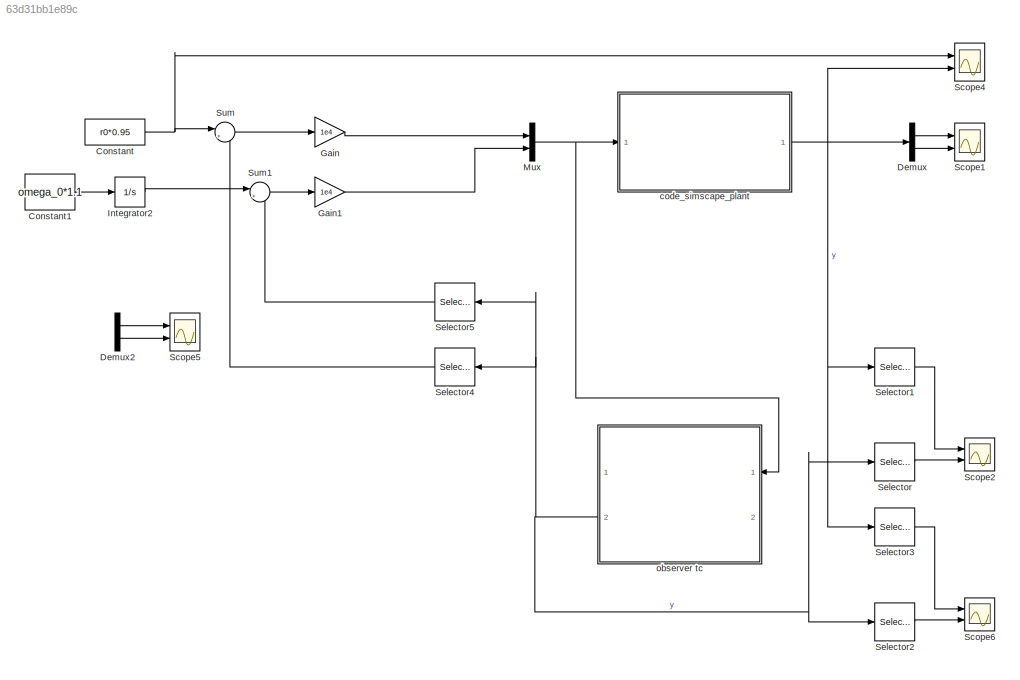
MODEL slx_63d31bb1e89c
KIND model
CONFIG AbsTol = auto
CONFIG EnableMultiTasking = off
CONFIG FixedStep = auto
CONFIG MaxStep = ts
CONFIG MinStep = auto
CONFIG RelTol = 1e-3
CONFIG SampleTimeConstraint = Unconstrained
CONFIG Solver = daessc
CONFIG SolverName = daessc
CONFIG StartTime = 0.0
CONFIG StopTime = simlength
BLOCK [Constant] Constant
  Value = r0*0.95
BLOCK [Constant] Constant1
  Value = omega_0*1.1
BLOCK [Demux] Demux
  Outputs = 2
  Ports = [1, 2]
BLOCK [Demux] Demux2
  Outputs = 2
  Ports = [1, 2]
BLOCK [Gain] Gain
  Gain = 1e4
BLOCK [Gain] Gain1
  Gain = 1e4
BLOCK [Integrator] Integrator2
  Ports = [1, 1]
BLOCK [Mux] Mux
  DisplayOption = bar
  Inputs = 2
  Ports = [2, 1]
BLOCK [Scope] Scope1
  Floating = off
  NumInputPorts = 2
  Ports = [2]
  ScopeSpecificationString = Simulink.scopes.TimeScopeBlockCfg('CurrentConfiguration', extmgr.ConfigurationSet(extmgr.Configuration('Core','General UI',true),extmgr.Configuration('Core','Source UI',true),extmgr.Configuration('Sources','WiredSimulink',true,'DataLoggingVariableName','ScopeData1'),extmgr.Configuration('Visuals','Time Domain',true,'SerializedDisplays',{struct('MinYLimReal','-350136390390.02484','MaxYLimReal','315...<+2063ch>
BLOCK [Scope] Scope2
  Floating = off
  NumInputPorts = 2
  Ports = [2]
  ScopeSpecificationString = Simulink.scopes.TimeScopeBlockCfg('CurrentConfiguration', extmgr.ConfigurationSet(extmgr.Configuration('Core','General UI',true),extmgr.Configuration('Core','Source UI',true),extmgr.Configuration('Sources','WiredSimulink',true,'DataLoggingVariableName','ScopeData2'),extmgr.Configuration('Visuals','Time Domain',true,'SerializedDisplays',{struct('MinYLimReal','-350137728483.82721','MaxYLimReal','315...<+1562ch>
BLOCK [Scope] Scope4
  Floating = off
  NumInputPorts = 2
  Ports = [2]
  ScopeSpecificationString = Simulink.scopes.TimeScopeBlockCfg('CurrentConfiguration', extmgr.ConfigurationSet(extmgr.Configuration('Core','General UI',true),extmgr.Configuration('Core','Source UI',true),extmgr.Configuration('Sources','WiredSimulink',true,'DataLoggingVariableName','ScopeData1'),extmgr.Configuration('Visuals','Time Domain',true,'SerializedDisplays',{struct('MinYLimReal','-5275000.00000','MaxYLimReal','47475000...<+2141ch>
BLOCK [Scope] Scope5
  Floating = off
  NumInputPorts = 2
  Ports = [2]
  ScopeSpecificationString = Simulink.scopes.TimeScopeBlockCfg('CurrentConfiguration', extmgr.ConfigurationSet(extmgr.Configuration('Core','General UI',true),extmgr.Configuration('Core','Source UI',true),extmgr.Configuration('Sources','WiredSimulink',true,'DataLoggingVariableName','ScopeData3'),extmgr.Configuration('Visuals','Time Domain',true,'SerializedDisplays',{struct('MinYLimReal','32200000.00000','MaxYLimReal','52200000...<+2144ch>
BLOCK [Scope] Scope6
  Floating = off
  NumInputPorts = 2
  Ports = [2]
  ScopeSpecificationString = Simulink.scopes.TimeScopeBlockCfg('CurrentConfiguration', extmgr.ConfigurationSet(extmgr.Configuration('Core','General UI',true),extmgr.Configuration('Core','Source UI',true),extmgr.Configuration('Sources','WiredSimulink',true,'DataLoggingVariableName','ScopeData4'),extmgr.Configuration('Visuals','Time Domain',true,'SerializedDisplays',{struct('MinYLimReal','-240.0808','MaxYLimReal','2145.74493','...<+1516ch>
BLOCK [Selector] Selector
  IndexOptions = Index vector (dialog)
  Indices = 1
  InputPortWidth = 2
  OutputSizes = 1
  Ports = [1, 1]
BLOCK [Selector] Selector1
  IndexOptions = Index vector (dialog)
  Indices = 1
  InputPortWidth = 2
  OutputSizes = 1
  Ports = [1, 1]
BLOCK [Selector] Selector2
  IndexOptions = Index vector (dialog)
  Indices = 2
  InputPortWidth = 2
  OutputSizes = 1
  Ports = [1, 1]
BLOCK [Selector] Selector3
  IndexOptions = Index vector (dialog)
  Indices = 2
  InputPortWidth = 2
  OutputSizes = 1
  Ports = [1, 1]
BLOCK [Selector] Selector4
  IndexOptions = Index vector (dialog)
  Indices = 1
  InputPortWidth = 2
  OutputSizes = 1
  Ports = [1, 1]
BLOCK [Selector] Selector5
  IndexOptions = Index vector (dialog)
  Indices = 2
  InputPortWidth = 2
  OutputSizes = 1
  Ports = [1, 1]
BLOCK [Sum] Sum
  Inputs = |+-
  Ports = [2, 1]
BLOCK [Sum] Sum1
  Inputs = |+-
  Ports = [2, 1]
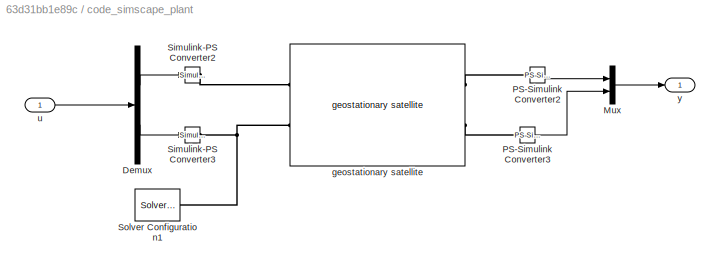
BLOCK [SubSystem] code_simscape_plant 
  Ports = [1, 1]
  RequestExecContextInheritance = off
BLOCK [Demux] code_simscape_plant /Demux
  Outputs = 2
  Ports = [1, 2]
BLOCK [Mux] code_simscape_plant /Mux
  DisplayOption = bar
  Inputs = 2
  Ports = [2, 1]
BLOCK [Reference] code_simscape_plant /PS-Simulink Converter2  REF=nesl_utility/PS-Simulink
Converter
  Ports = [0, 1, 0, 0, 0, 1]
  SourceBlock = nesl_utility/PS-Simulink\nConverter
  SourceProductBaseCode = SS
  SourceType = PS-Simulink\nConverter
BLOCK [Reference] code_simscape_plant /PS-Simulink Converter3  REF=nesl_utility/PS-Simulink
Converter
  NameLocation = top
  Ports = [0, 1, 0, 0, 0, 1]
  SourceBlock = nesl_utility/PS-Simulink\nConverter
  SourceProductBaseCode = SS
  SourceType = PS-Simulink\nConverter
BLOCK [Reference] code_simscape_plant /Simulink-PS Converter2  REF=nesl_utility/Simulink-PS
Converter
  Ports = [1, 0, 0, 0, 0, 0, 1]
  SourceBlock = nesl_utility/Simulink-PS\nConverter
  SourceProductBaseCode = SS
  SourceType = Simulink-PS\nConverter
BLOCK [Reference] code_simscape_plant /Simulink-PS Converter3  REF=nesl_utility/Simulink-PS
Converter
  Ports = [1, 0, 0, 0, 0, 0, 1]
  SourceBlock = nesl_utility/Simulink-PS\nConverter
  SourceProductBaseCode = SS
  SourceType = Simulink-PS\nConverter
BLOCK [Reference] code_simscape_plant /Solver Configuration1  REF=nesl_utility/Solver
Configuration
  Ports = [0, 0, 0, 0, 0, 0, 1]
  SourceBlock = nesl_utility/Solver\nConfiguration
  SourceProductBaseCode = SS
  SourceType = Solver\nConfiguration
BLOCK [Reference] code_simscape_plant /geostationary satellite  REF=geostationary_satellite_lib/geostationary
satellite
  Ports = [0, 0, 0, 0, 0, 2, 2]
  SourceBlock = geostationary_satellite_lib/geostationary\nsatellite
  SourceType = geostationary\nsatellite
BLOCK [Inport] code_simscape_plant /u
BLOCK [Outport] code_simscape_plant /y
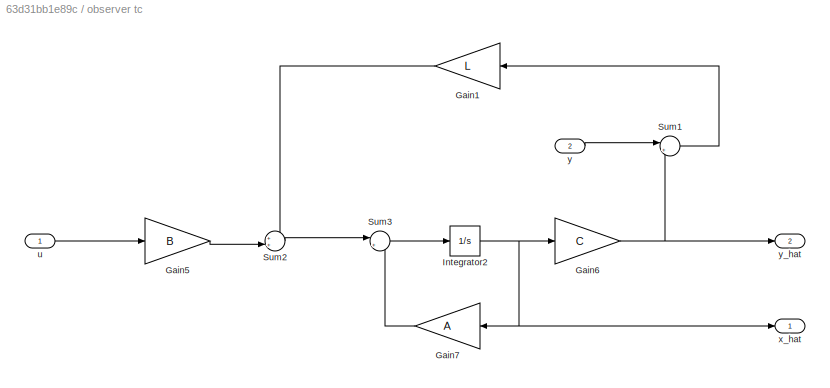
BLOCK [SubSystem] observer tc
  NameLocation = top
  Ports = [2, 2]
  RequestExecContextInheritance = off
BLOCK [Gain] observer tc/Gain1
  Gain = L
  Multiplication = Matrix(K*u)
  NameLocation = top
BLOCK [Gain] observer tc/Gain5
  Gain = B
  Multiplication = Matrix(K*u)
BLOCK [Gain] observer tc/Gain6
  Gain = C
  Multiplication = Matrix(K*u)
BLOCK [Gain] observer tc/Gain7
  Gain = A
  Multiplication = Matrix(K*u)
BLOCK [Integrator] observer tc/Integrator2
  InitialCondition = [r0 0 0 omega_0]'
  Ports = [1, 1]
BLOCK [Sum] observer tc/Sum1
  Inputs = |+-
  Ports = [2, 1]
BLOCK [Sum] observer tc/Sum2
  Inputs = ++|
  Ports = [2, 1]
BLOCK [Sum] observer tc/Sum3
  Inputs = |++
  Ports = [2, 1]
BLOCK [Inport] observer tc/u
BLOCK [Outport] observer tc/x_hat
BLOCK [Inport] observer tc/y
  Port = 2
BLOCK [Outport] observer tc/y_hat
  Port = 2
LINE Constant1:1 -> Integrator2:1
NET Constant:1 -> Scope4:1, Sum:1
LINE Demux2:1 -> Scope5:1
LINE Demux2:2 -> Scope5:2
LINE Demux:1 -> Scope1:1
LINE Demux:2 -> Scope1:2
LINE Gain1:1 -> Mux:2
LINE Gain:1 -> Mux:1
LINE Integrator2:1 -> Sum1:1
NET Mux:1 -> code_simscape_plant :1, observer tc:1
LINE Selector1:1 -> Scope2:1
LINE Selector2:1 -> Scope6:2
LINE Selector3:1 -> Scope6:1
LINE Selector4:1 -> Sum:2
LINE Selector5:1 -> Sum1:2
LINE Selector:1 -> Scope2:2
LINE Sum1:1 -> Gain1:1
LINE Sum:1 -> Gain:1
LINE code_simscape_plant /Demux:1 -> code_simscape_plant /Simulink-PS Converter2:1
LINE code_simscape_plant /Demux:2 -> code_simscape_plant /Simulink-PS Converter3:1
LINE code_simscape_plant /Mux:1 -> code_simscape_plant /y:1
LINE code_simscape_plant /PS-Simulink Converter2:1 -> code_simscape_plant /Mux:1
LINE code_simscape_plant /PS-Simulink Converter3:1 -> code_simscape_plant /Mux:2
LINE code_simscape_plant /u:1 -> code_simscape_plant /Demux:1
NET code_simscape_plant :1 -> Demux:1, Scope4:2, Selector1:1, Selector3:1
LINE observer tc/Gain1:1 -> observer tc/Sum2:1
LINE observer tc/Gain5:1 -> observer tc/Sum2:2
NET observer tc/Gain6:1 -> observer tc/Sum1:2, observer tc/y_hat:1
LINE observer tc/Gain7:1 -> observer tc/Sum3:2
NET observer tc/Integrator2:1 -> observer tc/Gain6:1, observer tc/Gain7:1, observer tc/x_hat:1
LINE observer tc/Sum1:1 -> observer tc/Gain1:1
LINE observer tc/Sum2:1 -> observer tc/Sum3:1
LINE observer tc/Sum3:1 -> observer tc/Integrator2:1
LINE observer tc/u:1 -> observer tc/Gain5:1
LINE observer tc/y:1 -> observer tc/Sum1:1
NET observer tc:2 -> Selector2:1, Selector4:1, Selector5:1, Selector:1
PLINE code_simscape_plant /PS-Simulink Converter2:LConn1 -- code_simscape_plant /geostationary satellite:RConn1
PLINE code_simscape_plant /PS-Simulink Converter3:LConn1 -- code_simscape_plant /geostationary satellite:RConn2
PLINE code_simscape_plant /Simulink-PS Converter2:RConn1 -- code_simscape_plant /geostationary satellite:LConn1
PNET net1: code_simscape_plant /Simulink-PS Converter3:RConn1 -- code_simscape_plant /Solver Configuration1:RConn1 -- code_simscape_plant /geostationary satellite:LConn2
note: NET lines group one-source signal fan-out (src -> all destinations, sorted); 1:1 wires keep LINE; PNET lines group multi-terminal physical nets as a canonical sorted terminal list (undirected conserving connections); 2-terminal nets keep the pairwise PLINE form
